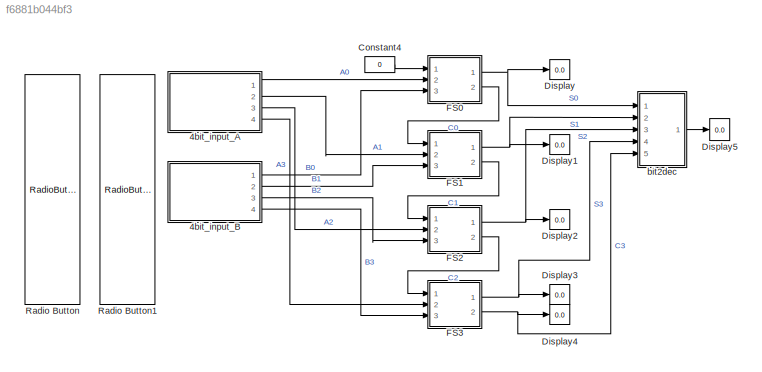
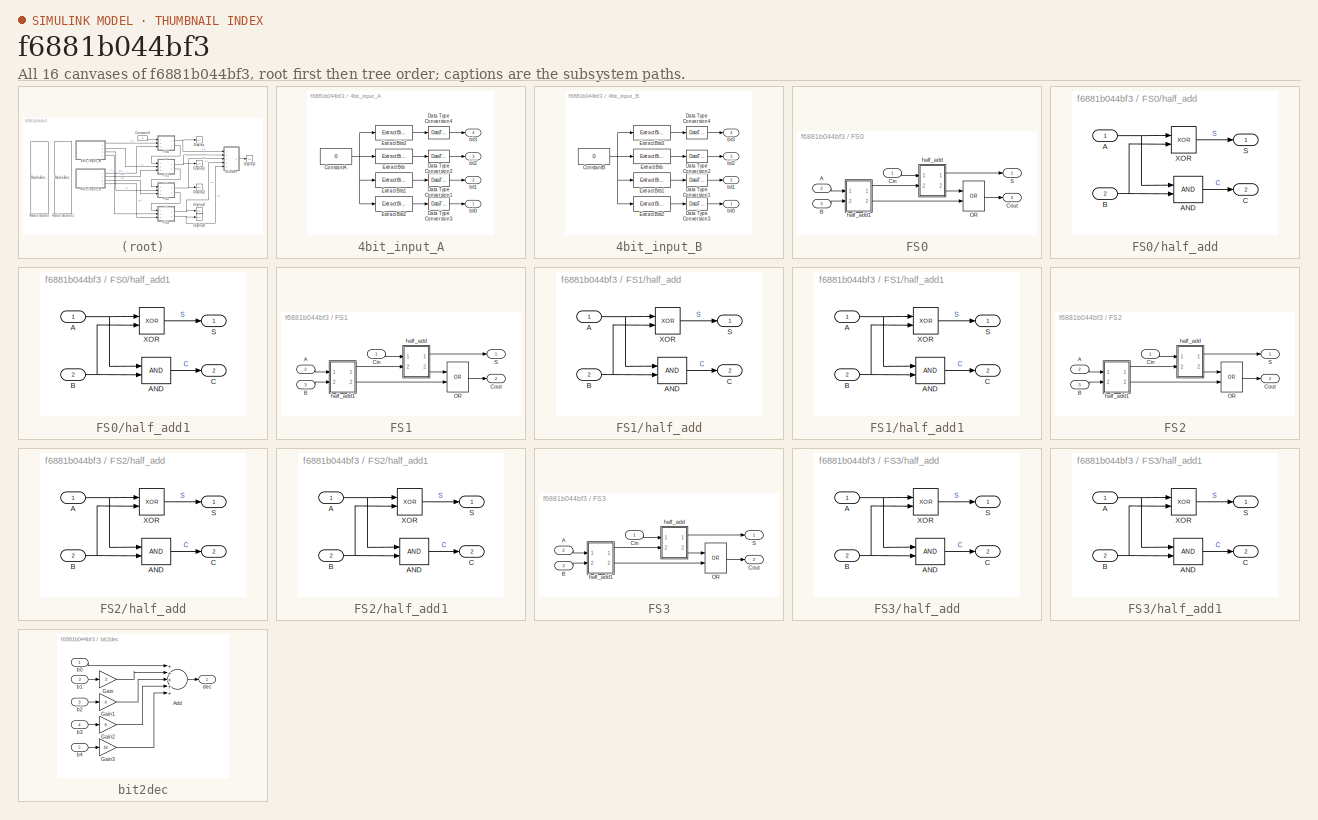
[diagram: thumbnail index - all 16 canvases of the model, root first then tree order]
MODEL slx_f6881b044bf3
KIND model
CONFIG AbsTol = auto
CONFIG EnableMultiTasking = off
CONFIG FixedStep = 1
CONFIG MaxStep = 1
CONFIG MinStep = auto
CONFIG RelTol = 1e-3
CONFIG SampleTimeConstraint = Unconstrained
CONFIG Solver = FixedStepAuto
CONFIG SolverName = FixedStepAuto
CONFIG StartTime = 0.0
CONFIG StopTime = inf
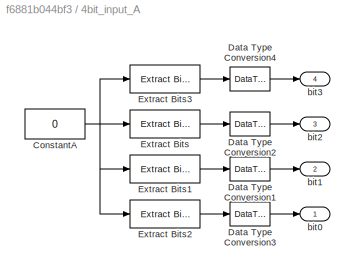
BLOCK [SubSystem] 4bit_input_A
  Ports = [0, 4]
  RequestExecContextInheritance = off
BLOCK [Constant] 4bit_input_A/ConstantA
  OutDataTypeStr = uint8
  OutMax = 15
  OutMin = 0
  Value = 0
BLOCK [DataTypeConversion] 4bit_input_A/Data Type Conversion1
  OutDataTypeStr = boolean
  RndMeth = Floor
  SaturateOnIntegerOverflow = off
BLOCK [DataTypeConversion] 4bit_input_A/Data Type Conversion2
  OutDataTypeStr = boolean
  RndMeth = Floor
  SaturateOnIntegerOverflow = off
BLOCK [DataTypeConversion] 4bit_input_A/Data Type Conversion3
  OutDataTypeStr = boolean
  RndMeth = Floor
  SaturateOnIntegerOverflow = off
BLOCK [DataTypeConversion] 4bit_input_A/Data Type Conversion4
  OutDataTypeStr = boolean
  RndMeth = Floor
  SaturateOnIntegerOverflow = off
BLOCK [Reference] 4bit_input_A/Extract Bits  REF=simulink/Logic and Bit
Operations/Extract Bits
  Ports = [1, 1]
  SourceBlock = simulink/Logic and Bit\nOperations/Extract Bits
  SourceProductBaseCode = SL
  SourceProductName = Simulink
  SourceType = Extract Bits
BLOCK [Reference] 4bit_input_A/Extract Bits1  REF=simulink/Logic and Bit
Operations/Extract Bits
  Ports = [1, 1]
  SourceBlock = simulink/Logic and Bit\nOperations/Extract Bits
  SourceProductBaseCode = SL
  SourceProductName = Simulink
  SourceType = Extract Bits
BLOCK [Reference] 4bit_input_A/Extract Bits2  REF=simulink/Logic and Bit
Operations/Extract Bits
  Ports = [1, 1]
  SourceBlock = simulink/Logic and Bit\nOperations/Extract Bits
  SourceProductBaseCode = SL
  SourceProductName = Simulink
  SourceType = Extract Bits
BLOCK [Reference] 4bit_input_A/Extract Bits3  REF=simulink/Logic and Bit
Operations/Extract Bits
  Ports = [1, 1]
  SourceBlock = simulink/Logic and Bit\nOperations/Extract Bits
  SourceProductBaseCode = SL
  SourceProductName = Simulink
  SourceType = Extract Bits
BLOCK [Outport] 4bit_input_A/bit0
  IconDisplay = Port number
BLOCK [Outport] 4bit_input_A/bit1
  IconDisplay = Port number
  Port = 2
BLOCK [Outport] 4bit_input_A/bit2
  IconDisplay = Port number
  Port = 3
BLOCK [Outport] 4bit_input_A/bit3
  IconDisplay = Port number
  Port = 4
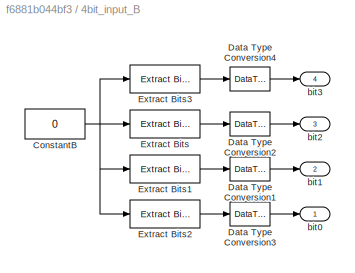
BLOCK [SubSystem] 4bit_input_B
  Ports = [0, 4]
  RequestExecContextInheritance = off
BLOCK [Constant] 4bit_input_B/ConstantB
  OutDataTypeStr = uint8
  OutMax = 15
  OutMin = 0
  Value = 0
BLOCK [DataTypeConversion] 4bit_input_B/Data Type Conversion1
  OutDataTypeStr = boolean
  RndMeth = Floor
  SaturateOnIntegerOverflow = off
BLOCK [DataTypeConversion] 4bit_input_B/Data Type Conversion2
  OutDataTypeStr = boolean
  RndMeth = Floor
  SaturateOnIntegerOverflow = off
BLOCK [DataTypeConversion] 4bit_input_B/Data Type Conversion3
  OutDataTypeStr = boolean
  RndMeth = Floor
  SaturateOnIntegerOverflow = off
BLOCK [DataTypeConversion] 4bit_input_B/Data Type Conversion4
  OutDataTypeStr = boolean
  RndMeth = Floor
  SaturateOnIntegerOverflow = off
BLOCK [Reference] 4bit_input_B/Extract Bits  REF=simulink/Logic and Bit
Operations/Extract Bits
  Ports = [1, 1]
  SourceBlock = simulink/Logic and Bit\nOperations/Extract Bits
  SourceProductBaseCode = SL
  SourceProductName = Simulink
  SourceType = Extract Bits
BLOCK [Reference] 4bit_input_B/Extract Bits1  REF=simulink/Logic and Bit
Operations/Extract Bits
  Ports = [1, 1]
  SourceBlock = simulink/Logic and Bit\nOperations/Extract Bits
  SourceProductBaseCode = SL
  SourceProductName = Simulink
  SourceType = Extract Bits
BLOCK [Reference] 4bit_input_B/Extract Bits2  REF=simulink/Logic and Bit
Operations/Extract Bits
  Ports = [1, 1]
  SourceBlock = simulink/Logic and Bit\nOperations/Extract Bits
  SourceProductBaseCode = SL
  SourceProductName = Simulink
  SourceType = Extract Bits
BLOCK [Reference] 4bit_input_B/Extract Bits3  REF=simulink/Logic and Bit
Operations/Extract Bits
  Ports = [1, 1]
  SourceBlock = simulink/Logic and Bit\nOperations/Extract Bits
  SourceProductBaseCode = SL
  SourceProductName = Simulink
  SourceType = Extract Bits
BLOCK [Outport] 4bit_input_B/bit0
  IconDisplay = Port number
BLOCK [Outport] 4bit_input_B/bit1
  IconDisplay = Port number
  Port = 2
BLOCK [Outport] 4bit_input_B/bit2
  IconDisplay = Port number
  Port = 3
BLOCK [Outport] 4bit_input_B/bit3
  IconDisplay = Port number
  Port = 4
BLOCK [Constant] Constant4
  OutDataTypeStr = boolean
  Value = 0
BLOCK [Display] Display
  Decimation = 1
  Ports = [1]
BLOCK [Display] Display1
  Decimation = 1
  Ports = [1]
BLOCK [Display] Display2
  Decimation = 1
  Ports = [1]
BLOCK [Display] Display3
  Decimation = 1
  Ports = [1]
BLOCK [Display] Display4
  Decimation = 1
  Ports = [1]
BLOCK [Display] Display5
  Decimation = 1
  Ports = [1]
BLOCK [SubSystem] FS0
  Ports = [3, 2]
  RequestExecContextInheritance = off
BLOCK [Inport] FS0/A
  IconDisplay = Port number
  Port = 2
BLOCK [Inport] FS0/B
  IconDisplay = Port number
  Port = 3
BLOCK [Inport] FS0/Cin
  IconDisplay = Port number
BLOCK [Outport] FS0/Cout
  IconDisplay = Port number
  Port = 2
BLOCK [Logic] FS0/OR
  AllPortsSameDT = off
  Operator = OR
  OutDataTypeStr = boolean
  Ports = [2, 1]
BLOCK [Outport] FS0/S
  IconDisplay = Port number
BLOCK [SubSystem] FS0/half_add
  Ports = [2, 2]
  RequestExecContextInheritance = off
BLOCK [Inport] FS0/half_add/A
  IconDisplay = Port number
BLOCK [Logic] FS0/half_add/AND
  AllPortsSameDT = off
  IconShape = distinctive
  OutDataTypeStr = boolean
  Ports = [2, 1]
BLOCK [Inport] FS0/half_add/B
  IconDisplay = Port number
  Port = 2
BLOCK [Outport] FS0/half_add/C
  IconDisplay = Port number
  Port = 2
BLOCK [Outport] FS0/half_add/S
  IconDisplay = Port number
BLOCK [Logic] FS0/half_add/XOR
  AllPortsSameDT = off
  IconShape = distinctive
  Operator = XOR
  OutDataTypeStr = boolean
  Ports = [2, 1]
BLOCK [SubSystem] FS0/half_add1
  Ports = [2, 2]
  RequestExecContextInheritance = off
BLOCK [Inport] FS0/half_add1/A
  IconDisplay = Port number
BLOCK [Logic] FS0/half_add1/AND
  AllPortsSameDT = off
  IconShape = distinctive
  OutDataTypeStr = boolean
  Ports = [2, 1]
BLOCK [Inport] FS0/half_add1/B
  IconDisplay = Port number
  Port = 2
BLOCK [Outport] FS0/half_add1/C
  IconDisplay = Port number
  Port = 2
BLOCK [Outport] FS0/half_add1/S
  IconDisplay = Port number
BLOCK [Logic] FS0/half_add1/XOR
  AllPortsSameDT = off
  IconShape = distinctive
  Operator = XOR
  OutDataTypeStr = boolean
  Ports = [2, 1]
BLOCK [SubSystem] FS1
  Ports = [3, 2]
  RequestExecContextInheritance = off
BLOCK [Inport] FS1/A
  IconDisplay = Port number
  Port = 2
BLOCK [Inport] FS1/B
  IconDisplay = Port number
  Port = 3
BLOCK [Inport] FS1/Cin
  IconDisplay = Port number
BLOCK [Outport] FS1/Cout
  IconDisplay = Port number
  Port = 2
BLOCK [Logic] FS1/OR
  AllPortsSameDT = off
  Operator = OR
  OutDataTypeStr = boolean
  Ports = [2, 1]
BLOCK [Outport] FS1/S
  IconDisplay = Port number
BLOCK [SubSystem] FS1/half_add
  Ports = [2, 2]
  RequestExecContextInheritance = off
BLOCK [Inport] FS1/half_add/A
  IconDisplay = Port number
BLOCK [Logic] FS1/half_add/AND
  AllPortsSameDT = off
  IconShape = distinctive
  OutDataTypeStr = boolean
  Ports = [2, 1]
BLOCK [Inport] FS1/half_add/B
  IconDisplay = Port number
  Port = 2
BLOCK [Outport] FS1/half_add/C
  IconDisplay = Port number
  Port = 2
BLOCK [Outport] FS1/half_add/S
  IconDisplay = Port number
BLOCK [Logic] FS1/half_add/XOR
  AllPortsSameDT = off
  IconShape = distinctive
  Operator = XOR
  OutDataTypeStr = boolean
  Ports = [2, 1]
BLOCK [SubSystem] FS1/half_add1
  Ports = [2, 2]
  RequestExecContextInheritance = off
BLOCK [Inport] FS1/half_add1/A
  IconDisplay = Port number
BLOCK [Logic] FS1/half_add1/AND
  AllPortsSameDT = off
  IconShape = distinctive
  OutDataTypeStr = boolean
  Ports = [2, 1]
BLOCK [Inport] FS1/half_add1/B
  IconDisplay = Port number
  Port = 2
BLOCK [Outport] FS1/half_add1/C
  IconDisplay = Port number
  Port = 2
BLOCK [Outport] FS1/half_add1/S
  IconDisplay = Port number
BLOCK [Logic] FS1/half_add1/XOR
  AllPortsSameDT = off
  IconShape = distinctive
  Operator = XOR
  OutDataTypeStr = boolean
  Ports = [2, 1]
BLOCK [SubSystem] FS2
  Ports = [3, 2]
  RequestExecContextInheritance = off
BLOCK [Inport] FS2/A
  IconDisplay = Port number
  Port = 2
BLOCK [Inport] FS2/B
  IconDisplay = Port number
  Port = 3
BLOCK [Inport] FS2/Cin
  IconDisplay = Port number
BLOCK [Outport] FS2/Cout
  IconDisplay = Port number
  Port = 2
BLOCK [Logic] FS2/OR
  AllPortsSameDT = off
  Operator = OR
  OutDataTypeStr = boolean
  Ports = [2, 1]
BLOCK [Outport] FS2/S
  IconDisplay = Port number
BLOCK [SubSystem] FS2/half_add
  Ports = [2, 2]
  RequestExecContextInheritance = off
BLOCK [Inport] FS2/half_add/A
  IconDisplay = Port number
BLOCK [Logic] FS2/half_add/AND
  AllPortsSameDT = off
  IconShape = distinctive
  OutDataTypeStr = boolean
  Ports = [2, 1]
BLOCK [Inport] FS2/half_add/B
  IconDisplay = Port number
  Port = 2
BLOCK [Outport] FS2/half_add/C
  IconDisplay = Port number
  Port = 2
BLOCK [Outport] FS2/half_add/S
  IconDisplay = Port number
BLOCK [Logic] FS2/half_add/XOR
  AllPortsSameDT = off
  IconShape = distinctive
  Operator = XOR
  OutDataTypeStr = boolean
  Ports = [2, 1]
BLOCK [SubSystem] FS2/half_add1
  Ports = [2, 2]
  RequestExecContextInheritance = off
BLOCK [Inport] FS2/half_add1/A
  IconDisplay = Port number
BLOCK [Logic] FS2/half_add1/AND
  AllPortsSameDT = off
  IconShape = distinctive
  OutDataTypeStr = boolean
  Ports = [2, 1]
BLOCK [Inport] FS2/half_add1/B
  IconDisplay = Port number
  Port = 2
BLOCK [Outport] FS2/half_add1/C
  IconDisplay = Port number
  Port = 2
BLOCK [Outport] FS2/half_add1/S
  IconDisplay = Port number
BLOCK [Logic] FS2/half_add1/XOR
  AllPortsSameDT = off
  IconShape = distinctive
  Operator = XOR
  OutDataTypeStr = boolean
  Ports = [2, 1]
BLOCK [SubSystem] FS3
  Ports = [3, 2]
  RequestExecContextInheritance = off
BLOCK [Inport] FS3/A
  IconDisplay = Port number
  Port = 2
BLOCK [Inport] FS3/B
  IconDisplay = Port number
  Port = 3
BLOCK [Inport] FS3/Cin
  IconDisplay = Port number
BLOCK [Outport] FS3/Cout
  IconDisplay = Port number
  Port = 2
BLOCK [Logic] FS3/OR
  AllPortsSameDT = off
  Operator = OR
  OutDataTypeStr = boolean
  Ports = [2, 1]
BLOCK [Outport] FS3/S
  IconDisplay = Port number
BLOCK [SubSystem] FS3/half_add
  Ports = [2, 2]
  RequestExecContextInheritance = off
BLOCK [Inport] FS3/half_add/A
  IconDisplay = Port number
BLOCK [Logic] FS3/half_add/AND
  AllPortsSameDT = off
  IconShape = distinctive
  OutDataTypeStr = boolean
  Ports = [2, 1]
BLOCK [Inport] FS3/half_add/B
  IconDisplay = Port number
  Port = 2
BLOCK [Outport] FS3/half_add/C
  IconDisplay = Port number
  Port = 2
BLOCK [Outport] FS3/half_add/S
  IconDisplay = Port number
BLOCK [Logic] FS3/half_add/XOR
  AllPortsSameDT = off
  IconShape = distinctive
  Operator = XOR
  OutDataTypeStr = boolean
  Ports = [2, 1]
BLOCK [SubSystem] FS3/half_add1
  Ports = [2, 2]
  RequestExecContextInheritance = off
BLOCK [Inport] FS3/half_add1/A
  IconDisplay = Port number
BLOCK [Logic] FS3/half_add1/AND
  AllPortsSameDT = off
  IconShape = distinctive
  OutDataTypeStr = boolean
  Ports = [2, 1]
BLOCK [Inport] FS3/half_add1/B
  IconDisplay = Port number
  Port = 2
BLOCK [Outport] FS3/half_add1/C
  IconDisplay = Port number
  Port = 2
BLOCK [Outport] FS3/half_add1/S
  IconDisplay = Port number
BLOCK [Logic] FS3/half_add1/XOR
  AllPortsSameDT = off
  IconShape = distinctive
  Operator = XOR
  OutDataTypeStr = boolean
  Ports = [2, 1]
BLOCK [RadioButtonGroup] Radio Button
  SelectedLabel = 0
BLOCK [RadioButtonGroup] Radio Button1
  SelectedLabel = 0
BLOCK [SubSystem] bit2dec
  Ports = [5, 1]
  RequestExecContextInheritance = off
BLOCK [Sum] bit2dec/Add
  InputSameDT = off
  Inputs = +++++
  OutDataTypeStr = Inherit: Inherit via internal rule
  Ports = [5, 1]
  SaturateOnIntegerOverflow = off
BLOCK [Gain] bit2dec/Gain
  Gain = 2
  OutDataTypeStr = Inherit: Inherit via internal rule
  ParamDataTypeStr = Inherit: Inherit via internal rule
  SaturateOnIntegerOverflow = off
BLOCK [Gain] bit2dec/Gain1
  Gain = 4
  OutDataTypeStr = Inherit: Inherit via internal rule
  ParamDataTypeStr = Inherit: Inherit via internal rule
  SaturateOnIntegerOverflow = off
BLOCK [Gain] bit2dec/Gain2
  Gain = 8
  OutDataTypeStr = Inherit: Inherit via internal rule
  ParamDataTypeStr = Inherit: Inherit via internal rule
  SaturateOnIntegerOverflow = off
BLOCK [Gain] bit2dec/Gain3
  Gain = 16
  OutDataTypeStr = Inherit: Inherit via internal rule
  ParamDataTypeStr = Inherit: Inherit via internal rule
  SaturateOnIntegerOverflow = off
BLOCK [Inport] bit2dec/b0
  IconDisplay = Port number
BLOCK [Inport] bit2dec/b1
  IconDisplay = Port number
  Port = 2
BLOCK [Inport] bit2dec/b2
  IconDisplay = Port number
  Port = 3
BLOCK [Inport] bit2dec/b3
  IconDisplay = Port number
  Port = 4
BLOCK [Inport] bit2dec/b4
  IconDisplay = Port number
  Port = 5
BLOCK [Outport] bit2dec/dec
  IconDisplay = Port number
NET 4bit_input_A/ConstantA:1 -> 4bit_input_A/Extract Bits1:1, 4bit_input_A/Extract Bits2:1, 4bit_input_A/Extract Bits3:1, 4bit_input_A/Extract Bits:1
LINE 4bit_input_A/Data Type Conversion1:1 -> 4bit_input_A/bit1:1
LINE 4bit_input_A/Data Type Conversion2:1 -> 4bit_input_A/bit2:1
LINE 4bit_input_A/Data Type Conversion3:1 -> 4bit_input_A/bit0:1
LINE 4bit_input_A/Data Type Conversion4:1 -> 4bit_input_A/bit3:1
LINE 4bit_input_A/Extract Bits1:1 -> 4bit_input_A/Data Type Conversion1:1
LINE 4bit_input_A/Extract Bits2:1 -> 4bit_input_A/Data Type Conversion3:1
LINE 4bit_input_A/Extract Bits3:1 -> 4bit_input_A/Data Type Conversion4:1
LINE 4bit_input_A/Extract Bits:1 -> 4bit_input_A/Data Type Conversion2:1
LINE 4bit_input_A:1 -> FS0:2
LINE 4bit_input_A:2 -> FS1:2
LINE 4bit_input_A:3 -> FS2:2
LINE 4bit_input_A:4 -> FS3:2
NET 4bit_input_B/ConstantB:1 -> 4bit_input_B/Extract Bits1:1, 4bit_input_B/Extract Bits2:1, 4bit_input_B/Extract Bits3:1, 4bit_input_B/Extract Bits:1
LINE 4bit_input_B/Data Type Conversion1:1 -> 4bit_input_B/bit1:1
LINE 4bit_input_B/Data Type Conversion2:1 -> 4bit_input_B/bit2:1
LINE 4bit_input_B/Data Type Conversion3:1 -> 4bit_input_B/bit0:1
LINE 4bit_input_B/Data Type Conversion4:1 -> 4bit_input_B/bit3:1
LINE 4bit_input_B/Extract Bits1:1 -> 4bit_input_B/Data Type Conversion1:1
LINE 4bit_input_B/Extract Bits2:1 -> 4bit_input_B/Data Type Conversion3:1
LINE 4bit_input_B/Extract Bits3:1 -> 4bit_input_B/Data Type Conversion4:1
LINE 4bit_input_B/Extract Bits:1 -> 4bit_input_B/Data Type Conversion2:1
LINE 4bit_input_B:1 -> FS0:3
LINE 4bit_input_B:2 -> FS1:3
LINE 4bit_input_B:3 -> FS2:3
LINE 4bit_input_B:4 -> FS3:3
LINE Constant4:1 -> FS0:1
LINE FS0/A:1 -> FS0/half_add1:1
LINE FS0/B:1 -> FS0/half_add1:2
LINE FS0/Cin:1 -> FS0/half_add:1
LINE FS0/OR:1 -> FS0/Cout:1
NET FS0/half_add/A:1 -> FS0/half_add/AND:1, FS0/half_add/XOR:1
LINE FS0/half_add/AND:1 -> FS0/half_add/C:1
NET FS0/half_add/B:1 -> FS0/half_add/AND:2, FS0/half_add/XOR:2
LINE FS0/half_add/XOR:1 -> FS0/half_add/S:1
NET FS0/half_add1/A:1 -> FS0/half_add1/AND:1, FS0/half_add1/XOR:1
LINE FS0/half_add1/AND:1 -> FS0/half_add1/C:1
NET FS0/half_add1/B:1 -> FS0/half_add1/AND:2, FS0/half_add1/XOR:2
LINE FS0/half_add1/XOR:1 -> FS0/half_add1/S:1
LINE FS0/half_add1:1 -> FS0/half_add:2
LINE FS0/half_add1:2 -> FS0/OR:2
LINE FS0/half_add:1 -> FS0/S:1
LINE FS0/half_add:2 -> FS0/OR:1
NET FS0:1 -> Display:1, bit2dec:1
LINE FS0:2 -> FS1:1
LINE FS1/A:1 -> FS1/half_add1:1
LINE FS1/B:1 -> FS1/half_add1:2
LINE FS1/Cin:1 -> FS1/half_add:1
LINE FS1/OR:1 -> FS1/Cout:1
NET FS1/half_add/A:1 -> FS1/half_add/AND:1, FS1/half_add/XOR:1
LINE FS1/half_add/AND:1 -> FS1/half_add/C:1
NET FS1/half_add/B:1 -> FS1/half_add/AND:2, FS1/half_add/XOR:2
LINE FS1/half_add/XOR:1 -> FS1/half_add/S:1
NET FS1/half_add1/A:1 -> FS1/half_add1/AND:1, FS1/half_add1/XOR:1
LINE FS1/half_add1/AND:1 -> FS1/half_add1/C:1
NET FS1/half_add1/B:1 -> FS1/half_add1/AND:2, FS1/half_add1/XOR:2
LINE FS1/half_add1/XOR:1 -> FS1/half_add1/S:1
LINE FS1/half_add1:1 -> FS1/half_add:2
LINE FS1/half_add1:2 -> FS1/OR:2
LINE FS1/half_add:1 -> FS1/S:1
LINE FS1/half_add:2 -> FS1/OR:1
NET FS1:1 -> Display1:1, bit2dec:2
LINE FS1:2 -> FS2:1
LINE FS2/A:1 -> FS2/half_add1:1
LINE FS2/B:1 -> FS2/half_add1:2
LINE FS2/Cin:1 -> FS2/half_add:1
LINE FS2/OR:1 -> FS2/Cout:1
NET FS2/half_add/A:1 -> FS2/half_add/AND:1, FS2/half_add/XOR:1
LINE FS2/half_add/AND:1 -> FS2/half_add/C:1
NET FS2/half_add/B:1 -> FS2/half_add/AND:2, FS2/half_add/XOR:2
LINE FS2/half_add/XOR:1 -> FS2/half_add/S:1
NET FS2/half_add1/A:1 -> FS2/half_add1/AND:1, FS2/half_add1/XOR:1
LINE FS2/half_add1/AND:1 -> FS2/half_add1/C:1
NET FS2/half_add1/B:1 -> FS2/half_add1/AND:2, FS2/half_add1/XOR:2
LINE FS2/half_add1/XOR:1 -> FS2/half_add1/S:1
LINE FS2/half_add1:1 -> FS2/half_add:2
LINE FS2/half_add1:2 -> FS2/OR:2
LINE FS2/half_add:1 -> FS2/S:1
LINE FS2/half_add:2 -> FS2/OR:1
NET FS2:1 -> Display2:1, bit2dec:3
LINE FS2:2 -> FS3:1
LINE FS3/A:1 -> FS3/half_add1:1
LINE FS3/B:1 -> FS3/half_add1:2
LINE FS3/Cin:1 -> FS3/half_add:1
LINE FS3/OR:1 -> FS3/Cout:1
NET FS3/half_add/A:1 -> FS3/half_add/AND:1, FS3/half_add/XOR:1
LINE FS3/half_add/AND:1 -> FS3/half_add/C:1
NET FS3/half_add/B:1 -> FS3/half_add/AND:2, FS3/half_add/XOR:2
LINE FS3/half_add/XOR:1 -> FS3/half_add/S:1
NET FS3/half_add1/A:1 -> FS3/half_add1/AND:1, FS3/half_add1/XOR:1
LINE FS3/half_add1/AND:1 -> FS3/half_add1/C:1
NET FS3/half_add1/B:1 -> FS3/half_add1/AND:2, FS3/half_add1/XOR:2
LINE FS3/half_add1/XOR:1 -> FS3/half_add1/S:1
LINE FS3/half_add1:1 -> FS3/half_add:2
LINE FS3/half_add1:2 -> FS3/OR:2
LINE FS3/half_add:1 -> FS3/S:1
LINE FS3/half_add:2 -> FS3/OR:1
NET FS3:1 -> Display3:1, bit2dec:4
NET FS3:2 -> Display4:1, bit2dec:5
LINE bit2dec/Add:1 -> bit2dec/dec:1
LINE bit2dec/Gain1:1 -> bit2dec/Add:3
LINE bit2dec/Gain2:1 -> bit2dec/Add:4
LINE bit2dec/Gain3:1 -> bit2dec/Add:5
LINE bit2dec/Gain:1 -> bit2dec/Add:2
LINE bit2dec/b0:1 -> bit2dec/Add:1
LINE bit2dec/b1:1 -> bit2dec/Gain:1
LINE bit2dec/b2:1 -> bit2dec/Gain1:1
LINE bit2dec/b3:1 -> bit2dec/Gain2:1
LINE bit2dec/b4:1 -> bit2dec/Gain3:1
LINE bit2dec:1 -> Display5:1
note: NET lines group one-source signal fan-out (src -> all destinations, sorted); 1:1 wires keep LINE
